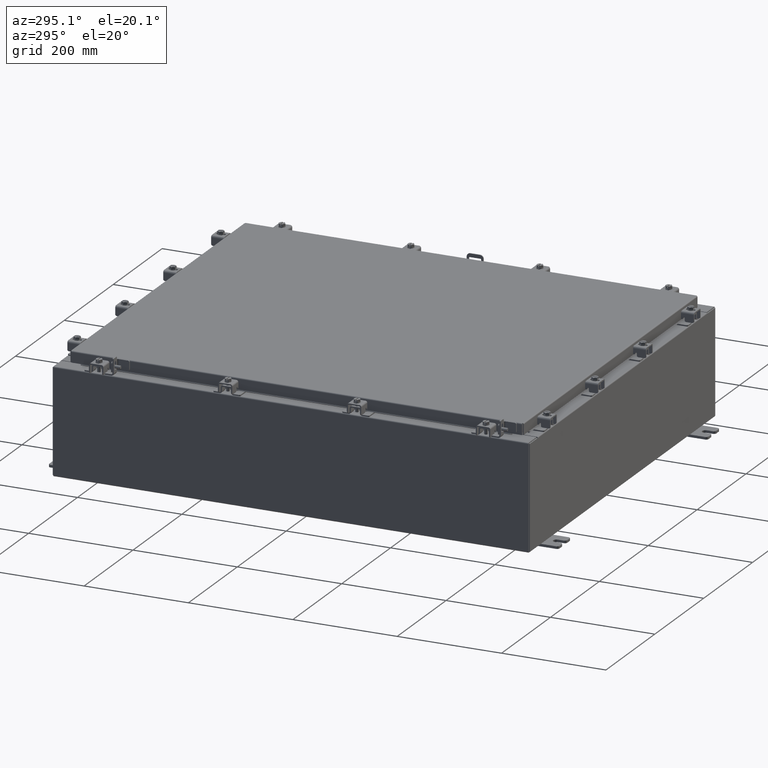
[diagram: clean part render]
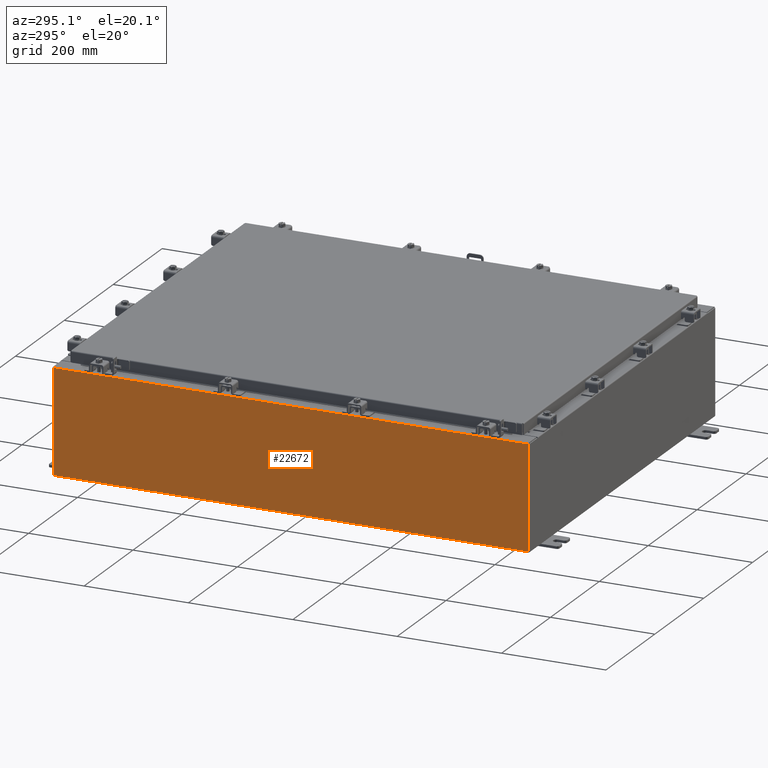
[diagram: same view with one face highlighted and labeled with its STEP entity id]
A machine part, auxiliary view. The second image highlights one B-rep face of the part: STEP entity #22672.
In plain terms, the highlighted planar face has unit normal (1, 0, 0).
Its self-contained STEP definition (entity closure, byte-faithful):
#315 = LINE ( 'NONE', #1969, #9737 ) ;
#477 = LINE ( 'NONE', #16312, #1068 ) ;
#1068 = VECTOR ( 'NONE', #9525, 39.37007874015748100 ) ;
#1664 = EDGE_CURVE ( 'NONE', #18832, #15904, #477, .T. ) ;
#1763 = EDGE_CURVE ( 'NONE', #4482, #18832, #23812, .T. ) ;
#1969 = CARTESIAN_POINT ( 'NONE',  ( -15.00000000000000400, -17.92530000000000000, -5.403936812467120800E-014 ) ) ;
#3831 = DIRECTION ( 'NONE',  ( -3.584876173029202900E-015, 0.0000000000000000000, 1.000000000000000000 ) ) ;
#4270 = VECTOR ( 'NONE', #15107, 39.37007874015748100 ) ;
#4482 = VERTEX_POINT ( 'NONE', #18002 ) ;
#5994 = AXIS2_PLACEMENT_3D ( 'NONE', #21657, #10319, #23560 ) ;
#6167 = EDGE_CURVE ( 'NONE', #17307, #4482, #315, .T. ) ;
#6694 = ORIENTED_EDGE ( 'NONE', *, *, #13760, .F. ) ;
#6763 = CARTESIAN_POINT ( 'NONE',  ( -15.00000000000000400, 17.92530000000000000, 0.01299999999999985200 ) ) ;
#9525 = DIRECTION ( 'NONE',  ( 3.584876173029202900E-015, 0.0000000000000000000, -1.000000000000000000 ) ) ;
#9737 = VECTOR ( 'NONE', #3831, 39.37007874015748100 ) ;
#10319 = DIRECTION ( 'NONE',  ( 1.000000000000000000, 0.0000000000000000000, 3.584876173029202900E-015 ) ) ;
#11404 = CARTESIAN_POINT ( 'NONE',  ( -15.00000000000003200, 17.92530000000000000, 7.837599999999999200 ) ) ;
#11443 = EDGE_LOOP ( 'NONE', ( #20746, #22442, #6694, #22591 ) ) ;
#13760 = EDGE_CURVE ( 'NONE', #17307, #15904, #19484, .T. ) ;
#14411 = CARTESIAN_POINT ( 'NONE',  ( -15.00000000000003200, -17.92530000000000000, 7.837599999999999200 ) ) ;
#15107 = DIRECTION ( 'NONE',  ( 0.0000000000000000000, 1.000000000000000000, 0.0000000000000000000 ) ) ;
#15841 = PLANE ( 'NONE',  #5994 ) ;
#15904 = VERTEX_POINT ( 'NONE', #16244 ) ;
#16244 = CARTESIAN_POINT ( 'NONE',  ( -15.00000000000000400, 17.92530000000000000, 0.01299999999999983500 ) ) ;
#16312 = CARTESIAN_POINT ( 'NONE',  ( -15.00000000000000400, 17.92530000000000000, -5.403936812467120800E-014 ) ) ;
#17307 = VERTEX_POINT ( 'NONE', #18401 ) ;
#18002 = CARTESIAN_POINT ( 'NONE',  ( -15.00000000000003200, -17.92530000000000000, 7.837599999999999200 ) ) ;
#18219 = FACE_OUTER_BOUND ( 'NONE', #11443, .T. ) ;
#18401 = CARTESIAN_POINT ( 'NONE',  ( -15.00000000000000400, -17.92530000000000000, 0.01299999999999985200 ) ) ;
#18832 = VERTEX_POINT ( 'NONE', #11404 ) ;
#19484 = LINE ( 'NONE', #6763, #23922 ) ;
#20008 = DIRECTION ( 'NONE',  ( -0.0000000000000000000, 1.000000000000000000, -0.0000000000000000000 ) ) ;
#20746 = ORIENTED_EDGE ( 'NONE', *, *, #1763, .T. ) ;
#21657 = CARTESIAN_POINT ( 'NONE',  ( -15.00000000000000400, 0.0000000000000000000, -5.403936812467120800E-014 ) ) ;
#22442 = ORIENTED_EDGE ( 'NONE', *, *, #1664, .T. ) ;
#22591 = ORIENTED_EDGE ( 'NONE', *, *, #6167, .T. ) ;
#22672 = ADVANCED_FACE ( 'NONE', ( #18219 ), #15841, .F. ) ;
#23560 = DIRECTION ( 'NONE',  ( 3.584876173029202900E-015, 0.0000000000000000000, -1.000000000000000000 ) ) ;
#23812 = LINE ( 'NONE', #14411, #4270 ) ;
#23922 = VECTOR ( 'NONE', #20008, 39.37007874015748100 ) ;